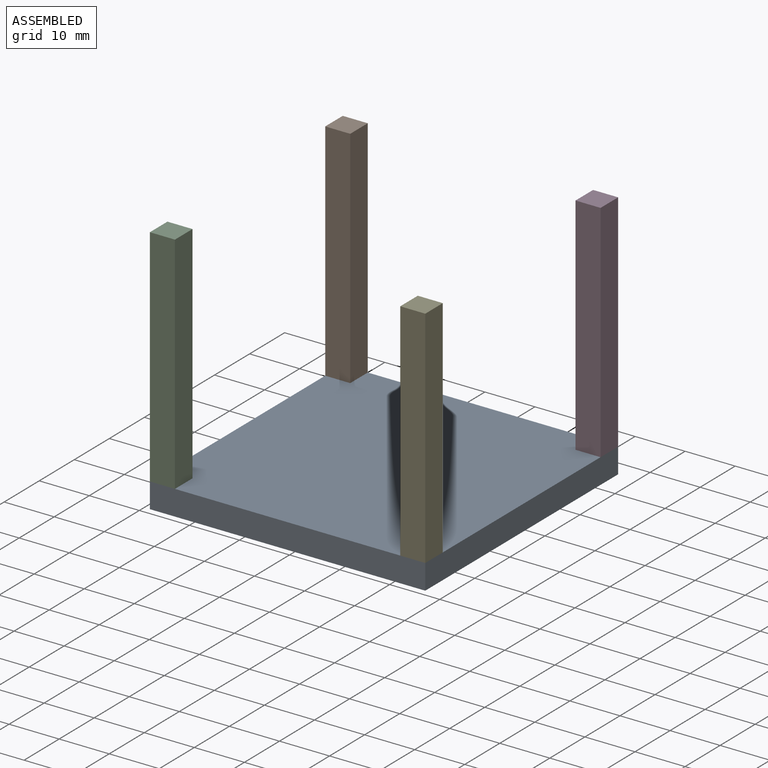
[diagram: assembled view]
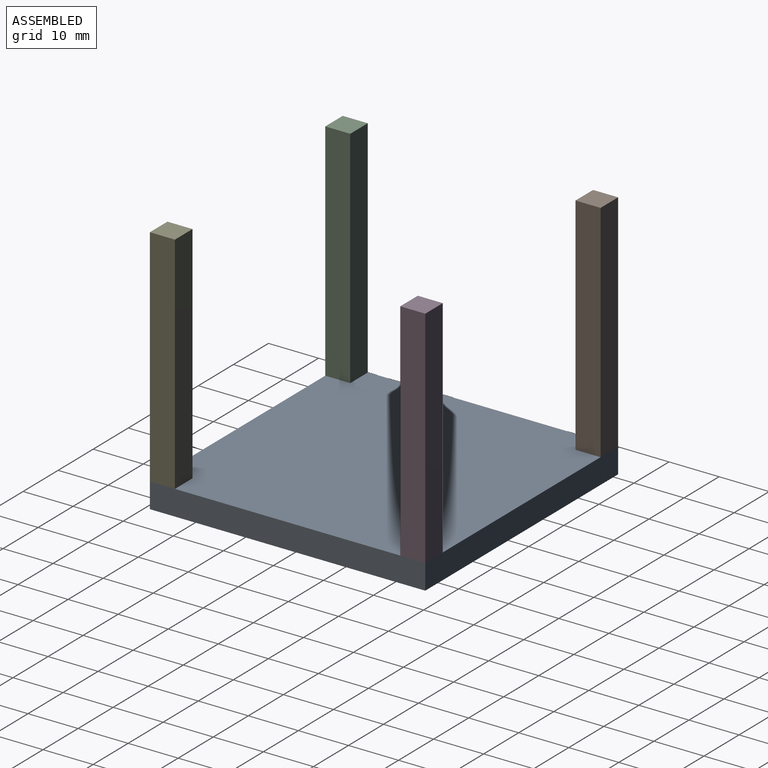
[diagram: assembled view, second angle]
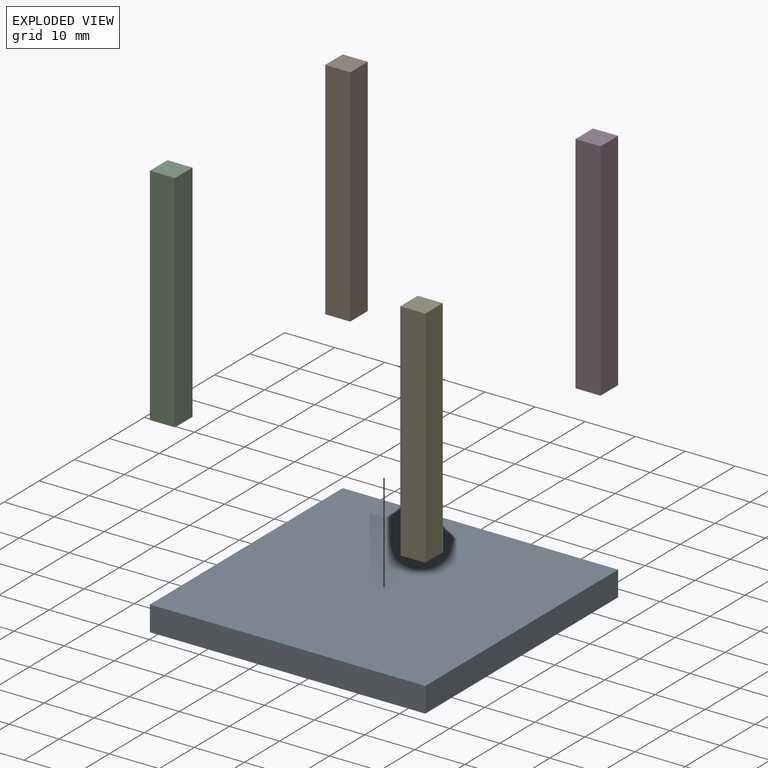
[diagram: exploded view]
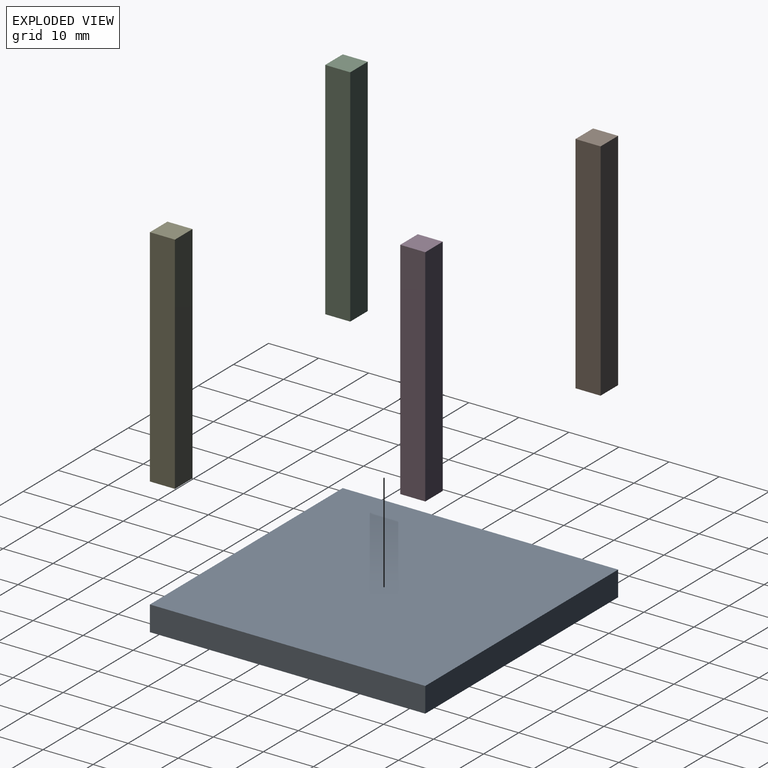
[diagram: exploded view, second angle]
FCSTD DOCUMENT  (FreeCAD 1.0R38806 (Git))
Label: Mesa-Ikea
License: All rights reserved
LicenseURL: https://en.wikipedia.org/wiki/All_rights_reserved
objects: App::FeaturePython×7, Sketcher::SketchObject×5, PartDesign::Pad×5, PartDesign::Body×5, TechDraw::DrawViewDimension×3, TechDraw::DrawProjGroupItem×2, Assembly::ViewGroup×1, Assembly::JointGroup×1, Assembly::AssemblyObject×1, TechDraw::DrawSVGTemplate×1, TechDraw::DrawPage×1
note: 33 computed .brp shape members not serialized (recipe doc carries the construction recipe); baked Part::Feature solids carry a one-line shape summary decoded from their .brp

FEATURE [Sketcher::SketchObject] Sketch
  ArcFitTolerance = 1e-06
  AttachmentSupport = -> [XY_Plane]
  FullyConstrained = true
  MakeInternals = false
  MapMode = 5
  sketch-geometry (4):
    g0: LineSegment StartX=0 StartY=0 StartZ=0 EndX=55 EndY=0 EndZ=0
    g1: LineSegment StartX=55 StartY=0 StartZ=0 EndX=55 EndY=55 EndZ=0
    g2: LineSegment StartX=55 StartY=55 StartZ=0 EndX=0 EndY=55 EndZ=0
    g3: LineSegment StartX=0 StartY=55 StartZ=0 EndX=0 EndY=0 EndZ=0
  constraints (11):
    c: Coincident(g0,g1)
    c: Coincident(g1,g2)
    c: Coincident(g2,g3)
    c: Coincident(g3,g0)
    c: Horizontal(g0)
    c: Horizontal(g2)
    c: Vertical(g1)
    c: Vertical(g3)
    c: Distance(g1,g3) = 55
    c: Distance(g0,g2) = 55
    c: Coincident(g0,g-1)
FEATURE [PartDesign::Pad] Pad
  Direction = (0,0,1)
  Length = 5
  Length2 = 10
  Profile = -> Sketch
  ReferenceAxis = -> Sketch [N_Axis]
  Refine = true
  Suppressed = false
  Type = 0
FEATURE [PartDesign::Body] Body  label="Tablero"
  AllowCompound = false
  Group = -> [Sketch,Pad]
  Origin = -> Origin
  Placement = pos=(0.15521,-0.0427551,-0.042161) rot=(0,0,1;0rad)
  Tip = -> Pad
FEATURE [Sketcher::SketchObject] Sketch001
  ArcFitTolerance = 1e-06
  AttachmentSupport = -> [XY_Plane001]
  FullyConstrained = false
  MakeInternals = false
  MapMode = 5
  sketch-geometry (4):
    g0: LineSegment StartX=3.58219 StartY=-9.3569 StartZ=0 EndX=3.58219 EndY=-14.3569 EndZ=0
    g1: LineSegment StartX=3.58219 StartY=-14.3569 StartZ=0 EndX=48.5822 EndY=-14.3569 EndZ=0
    g2: LineSegment StartX=48.5822 StartY=-14.3569 StartZ=0 EndX=48.5822 EndY=-9.3569 EndZ=0
    g3: LineSegment StartX=48.5822 StartY=-9.3569 StartZ=0 EndX=3.58219 EndY=-9.3569 EndZ=0
  constraints (10):
    c: Coincident(g0,g1)
    c: Coincident(g1,g2)
    c: Coincident(g2,g3)
    c: Coincident(g3,g0)
    c: Vertical(g0)
    c: Vertical(g2)
    c: Horizontal(g1)
    c: Horizontal(g3)
    c: Distance(g0,g2) = 45
    c: Distance(g1,g3) = 5
FEATURE [PartDesign::Pad] Pad001
  Direction = (0,0,1)
  Length = 5
  Length2 = 10
  Profile = -> Sketch001
  ReferenceAxis = -> Sketch001 [N_Axis]
  Refine = true
  Suppressed = false
  Type = 0
FEATURE [PartDesign::Body] Body001  label="Pata-1"
  AllowCompound = false
  Group = -> [Sketch001,Pad001]
  Origin = -> Origin001
  Placement = pos=(-9.20169,54.9572,1.37565) rot=(0.57735,-0.57735,0.57735;2.0944rad)
  Tip = -> Pad001
FEATURE [Sketcher::SketchObject] Sketch002
  ArcFitTolerance = 1e-06
  AttachmentSupport = -> [XY_Plane002]
  FullyConstrained = false
  MakeInternals = false
  MapMode = 5
  sketch-geometry (4):
    g0: LineSegment StartX=3.58219 StartY=-9.3569 StartZ=0 EndX=3.58219 EndY=-14.3569 EndZ=0
    g1: LineSegment StartX=3.58219 StartY=-14.3569 StartZ=0 EndX=48.5822 EndY=-14.3569 EndZ=0
    g2: LineSegment StartX=48.5822 StartY=-14.3569 StartZ=0 EndX=48.5822 EndY=-9.3569 EndZ=0
    g3: LineSegment StartX=48.5822 StartY=-9.3569 StartZ=0 EndX=3.58219 EndY=-9.3569 EndZ=0
  constraints (10):
    c: Coincident(g0,g1)
    c: Coincident(g1,g2)
    c: Coincident(g2,g3)
    c: Coincident(g3,g0)
    c: Vertical(g0)
    c: Vertical(g2)
    c: Horizontal(g1)
    c: Horizontal(g3)
    c: Distance(g0,g2) = 45
    c: Distance(g1,g3) = 5
FEATURE [PartDesign::Pad] Pad002
  Direction = (0,0,1)
  Length = 5
  Length2 = 10
  Profile = -> Sketch002
  ReferenceAxis = -> Sketch002 [N_Axis]
  Refine = true
  Suppressed = false
  Type = 0
FEATURE [PartDesign::Body] Body002  label="Pata-2"
  AllowCompound = false
  Group = -> [Sketch002,Pad002]
  Origin = -> Origin002
  Placement = pos=(-9.20169,4.95724,1.37565) rot=(0.57735,-0.57735,0.57735;2.0944rad)
  Tip = -> Pad002
FEATURE [Sketcher::SketchObject] Sketch003
  ArcFitTolerance = 1e-06
  AttachmentSupport = -> [XY_Plane003]
  FullyConstrained = false
  MakeInternals = false
  MapMode = 5
  sketch-geometry (4):
    g0: LineSegment StartX=3.58219 StartY=-9.3569 StartZ=0 EndX=3.58219 EndY=-14.3569 EndZ=0
    g1: LineSegment StartX=3.58219 StartY=-14.3569 StartZ=0 EndX=48.5822 EndY=-14.3569 EndZ=0
    g2: LineSegment StartX=48.5822 StartY=-14.3569 StartZ=0 EndX=48.5822 EndY=-9.3569 EndZ=0
    g3: LineSegment StartX=48.5822 StartY=-9.3569 StartZ=0 EndX=3.58219 EndY=-9.3569 EndZ=0
  constraints (10):
    c: Coincident(g0,g1)
    c: Coincident(g1,g2)
    c: Coincident(g2,g3)
    c: Coincident(g3,g0)
    c: Vertical(g0)
    c: Vertical(g2)
    c: Horizontal(g1)
    c: Horizontal(g3)
    c: Distance(g0,g2) = 45
    c: Distance(g1,g3) = 5
FEATURE [PartDesign::Pad] Pad003
  Direction = (0,0,1)
  Length = 5
  Length2 = 10
  Profile = -> Sketch003
  ReferenceAxis = -> Sketch003 [N_Axis]
  Refine = true
  Suppressed = false
  Type = 0
FEATURE [PartDesign::Body] Body003  label="Pata-3"
  AllowCompound = false
  Group = -> [Sketch003,Pad003]
  Origin = -> Origin003
  Placement = pos=(64.5121,54.9572,53.54) rot=(0.57735,0.57735,-0.57735;2.0944rad)
  Tip = -> Pad003
FEATURE [Sketcher::SketchObject] Sketch004
  ArcFitTolerance = 1e-06
  AttachmentSupport = -> [XY_Plane004]
  FullyConstrained = false
  MakeInternals = false
  MapMode = 5
  sketch-geometry (4):
    g0: LineSegment StartX=3.58219 StartY=-9.3569 StartZ=0 EndX=3.58219 EndY=-14.3569 EndZ=0
    g1: LineSegment StartX=3.58219 StartY=-14.3569 StartZ=0 EndX=48.5822 EndY=-14.3569 EndZ=0
    g2: LineSegment StartX=48.5822 StartY=-14.3569 StartZ=0 EndX=48.5822 EndY=-9.3569 EndZ=0
    g3: LineSegment StartX=48.5822 StartY=-9.3569 StartZ=0 EndX=3.58219 EndY=-9.3569 EndZ=0
  constraints (10):
    c: Coincident(g0,g1)
    c: Coincident(g1,g2)
    c: Coincident(g2,g3)
    c: Coincident(g3,g0)
    c: Vertical(g0)
    c: Vertical(g2)
    c: Horizontal(g1)
    c: Horizontal(g3)
    c: Distance(g0,g2) = 45
    c: Distance(g1,g3) = 5
FEATURE [PartDesign::Pad] Pad004
  Direction = (0,0,1)
  Length = 5
  Length2 = 10
  Profile = -> Sketch004
  ReferenceAxis = -> Sketch004 [N_Axis]
  Refine = true
  Suppressed = false
  Type = 0
FEATURE [PartDesign::Body] Body004  label="Pata-4"
  AllowCompound = false
  Group = -> [Sketch004,Pad004]
  Origin = -> Origin004
  Placement = pos=(64.5121,4.95724,53.54) rot=(0.57735,0.57735,-0.57735;2.0944rad)
  Tip = -> Pad004
FEATURE [App::FeaturePython] Move  # WARN: FeaturePython — macro-defined, semantics opaque (R4)
  MoveType = 1
  MovementTransform = pos=(11,2.86102e-07,7.62939e-07) rot=(0,0,1;0rad)
  References = -> Assembly [Body.,Body001.,Body002.,Body003.,Body004.]
FEATURE [App::FeaturePython] Exploded_View  # WARN: FeaturePython — macro-defined, semantics opaque (R4)
  Moves = -> [Move]
FEATURE [Assembly::ViewGroup] Exploded_Views
  Group = -> [Exploded_View]
FEATURE [App::FeaturePython] GroundedJoint  # Assembly grounded joint (typed FeaturePython)
  ObjectToGround = -> Body
  Placement = pos=(0.15521,-0.0427551,-0.042161) rot=(0,0,1;0rad)
FEATURE [App::FeaturePython] Fixed  # Assembly joint (typed FeaturePython)
  Activated = true
  AngleMax = 0
  AngleMin = 0
  Detach1 = false
  Detach2 = false
  Distance = 0
  Distance2 = 0
  EnableAngleMax = false
  EnableAngleMin = false
  EnableLengthMax = false
  EnableLengthMin = false
  JointType = 0 (Fixed)
  LengthMax = 0
  LengthMin = 0
  Placement1 = pos=(55,55,5) rot=(0,0,1;0rad)
  Placement2 = pos=(48.5822,-9.3569,-7.1e-15) rot=(-0.57735,-0.57735,0.57735;2.0944rad)
  Reference1 = -> Assembly [Body.Pad.Face6,Body.Pad.Vertex6]
  Reference2 = -> Assembly [Body003.Pad003.Face3,Body003.Pad003.Vertex7]
FEATURE [App::FeaturePython] Fixed001  # Assembly joint (typed FeaturePython)
  Activated = true
  AngleMax = 0
  AngleMin = 0
  Detach1 = false
  Detach2 = false
  Distance = 0
  Distance2 = 0
  EnableAngleMax = false
  EnableAngleMin = false
  EnableLengthMax = false
  EnableLengthMin = false
  JointType = 0 (Fixed)
  LengthMax = 0
  LengthMin = 0
  Placement1 = pos=(55,0,5) rot=(0,0,1;0rad)
  Placement2 = pos=(48.5822,-9.3569,5) rot=(-0.57735,-0.57735,0.57735;2.0944rad)
  Reference1 = -> Assembly [Body.Pad.Face6,Body.Pad.Vertex4]
  Reference2 = -> Assembly [Body004.Pad004.Face3,Body004.Pad004.Vertex8]
FEATURE [App::FeaturePython] Fixed002  # Assembly joint (typed FeaturePython)
  Activated = true
  AngleMax = 0
  AngleMin = 0
  Detach1 = false
  Detach2 = false
  Distance = 0
  Distance2 = 0
  EnableAngleMax = false
  EnableAngleMin = false
  EnableLengthMax = false
  EnableLengthMin = false
  JointType = 0 (Fixed)
  LengthMax = 0
  LengthMin = 0
  Placement1 = pos=(0,0,5) rot=(0,0,1;0rad)
  Placement2 = pos=(3.58219,-9.3569,5) rot=(-0.57735,0.57735,-0.57735;2.0944rad)
  Reference1 = -> Assembly [Body.Pad.Face6,Body.Pad.Vertex2]
  Reference2 = -> Assembly [Body002.Pad002.Face1,Body002.Pad002.Vertex2]
FEATURE [App::FeaturePython] Fixed003  # Assembly joint (typed FeaturePython)
  Activated = true
  AngleMax = 0
  AngleMin = 0
  Detach1 = false
  Detach2 = false
  Distance = 0
  Distance2 = 0
  EnableAngleMax = false
  EnableAngleMin = false
  EnableLengthMax = false
  EnableLengthMin = false
  JointType = 0 (Fixed)
  LengthMax = 0
  LengthMin = 0
  Placement1 = pos=(0,55,5) rot=(0,0,1;0rad)
  Placement2 = pos=(3.58219,-9.3569,0) rot=(-0.57735,0.57735,-0.57735;2.0944rad)
  Reference1 = -> Assembly [Body.Pad.Face6,Body.Pad.Vertex8]
  Reference2 = -> Assembly [Body001.Pad001.Face1,Body001.Pad001.Vertex1]
FEATURE [Assembly::JointGroup] Joints
  Group = -> [GroundedJoint,Fixed,Fixed001,Fixed002,Fixed003]
FEATURE [Assembly::AssemblyObject] Assembly
  Group = -> [Joints,Body,Body001,Body002,Body003,Body004,Exploded_Views,Exploded_View,Move,GroundedJoint,Fixed,Fixed001,Fixed002,Fixed003]
  Origin = -> Origin005
  Type = Assembly
FEATURE [TechDraw::DrawSVGTemplate] Template
  EditableTexts = Numero de ejercicio=000
  Height = 297
  Orientation = 0
  Template = <userpath>/Downloads/Freecad-Mechanical-A4.svg
  Width = 210
FEATURE [TechDraw::DrawProjGroupItem] View
  CoarseView = false
  Direction = (0,0,1)
  Focus = 100
  HardHidden = false
  IsoCount = 0
  IsoHidden = false
  IsoVisible = false
  LockPosition = false
  Perspective = false
  Rotation = 0
  RotationVector = (1,0,0)
  ScaleType = 0
  ScrubCount = 1
  SeamHidden = false
  SeamVisible = false
  SmoothHidden = false
  SmoothVisible = true
  Source = -> [Sketch]
  Type = 0
  X = 105
  XDirection = (1,0,0)
  Y = 148.5
FEATURE [TechDraw::DrawProjGroupItem] View001
  CoarseView = false
  Direction = (0,-1,0)
  Focus = 100
  HardHidden = false
  IsoCount = 0
  IsoHidden = false
  IsoVisible = false
  LockPosition = false
  Perspective = false
  Rotation = 0
  RotationVector = (1,0,0)
  ScaleType = 0
  ScrubCount = 1
  SeamHidden = false
  SeamVisible = false
  SmoothHidden = false
  SmoothVisible = true
  Source = -> [Sketch001]
  Type = 0
  X = 105
  XDirection = (1e-16,0,-1)
  Y = 197.273
FEATURE [TechDraw::DrawViewDimension] Dimension
  AngleOverride = false
  Arbitrary = false
  ArbitraryTolerances = false
  BoxCorners = (2) [(-27.5,-27.5,0),(27.5,27.5,0)]
  EqualTolerance = true
  ExtensionAngle = 0
  FormatSpec = %.2w
  FormatSpecOverTolerance = %+.2w
  FormatSpecUnderTolerance = %+.2w
  Inverted = false
  LineAngle = 0
  LockPosition = false
  MeasureType = 1
  OverTolerance = 0
  References2D = -> [View]
  Rotation = 0
  ScaleType = 0
  TheoreticalExact = false
  Type = 2
  UnderTolerance = 0
  X = 34.3411
  Y = 0
FEATURE [TechDraw::DrawViewDimension] Dimension001
  AngleOverride = false
  Arbitrary = false
  ArbitraryTolerances = false
  BoxCorners = (2) [(-27.5,-27.5,0),(27.5,27.5,0)]
  EqualTolerance = true
  ExtensionAngle = 0
  FormatSpec = %.2w
  FormatSpecOverTolerance = %+.2w
  FormatSpecUnderTolerance = %+.2w
  Inverted = false
  LineAngle = 0
  LockPosition = false
  MeasureType = 1
  OverTolerance = 0
  References2D = -> [View]
  Rotation = 0
  ScaleType = 0
  TheoreticalExact = false
  Type = 1
  UnderTolerance = 0
  X = -5.95746
  Y = -35.9048
FEATURE [TechDraw::DrawViewDimension] Dimension002
  AngleOverride = false
  Arbitrary = false
  ArbitraryTolerances = false
  BoxCorners = (2) [(-22.5,-2.5,0),(22.5,2.5,0)]
  EqualTolerance = true
  ExtensionAngle = 0
  FormatSpec = %.2w
  FormatSpecOverTolerance = %+.2w
  FormatSpecUnderTolerance = %+.2w
  Inverted = false
  LineAngle = 0
  LockPosition = false
  MeasureType = 1
  OverTolerance = 0
  References2D = -> [View001]
  Rotation = 0
  ScaleType = 0
  TheoreticalExact = false
  Type = 1
  UnderTolerance = 0
  X = 6.77464
  Y = 17.653
FEATURE [TechDraw::DrawPage] Page
  KeepUpdated = true
  NextBalloonIndex = 1
  ProjectionType = 0
  Template = -> Template
  Views = -> [View,View001,Dimension,Dimension001,Dimension002]
